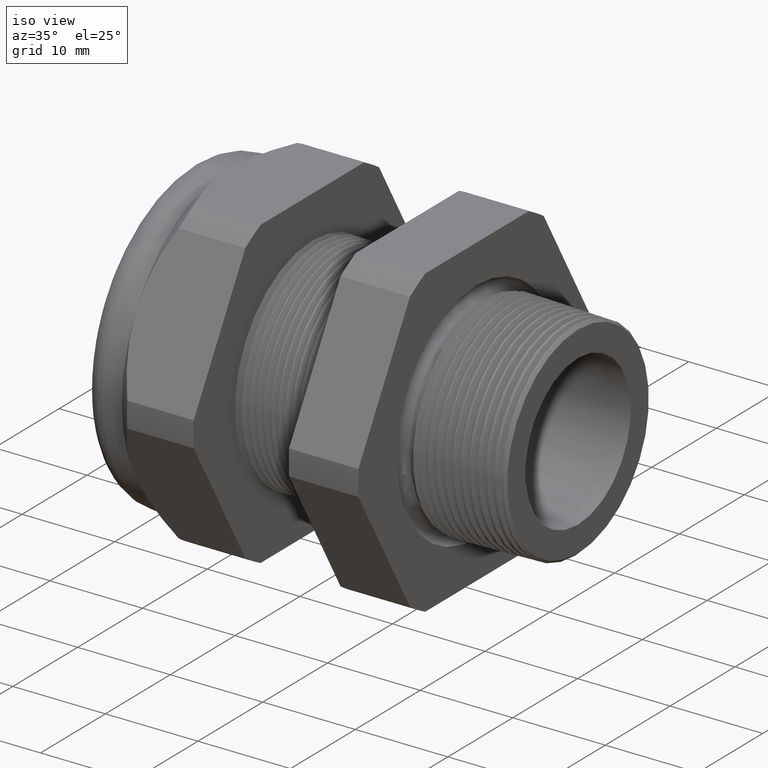
[diagram: clean part render]
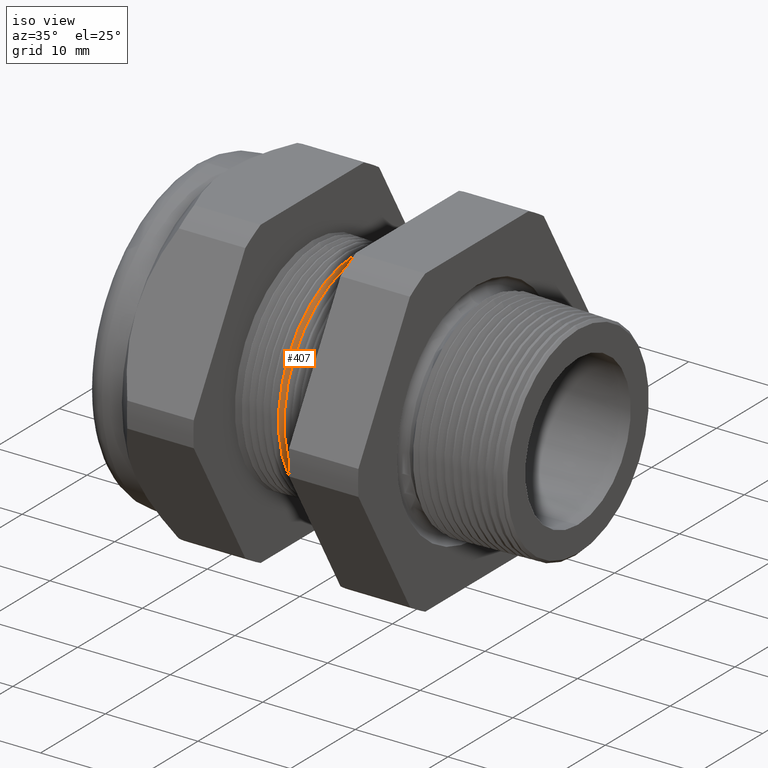
[diagram: same view with one face highlighted and labeled with its STEP entity id]
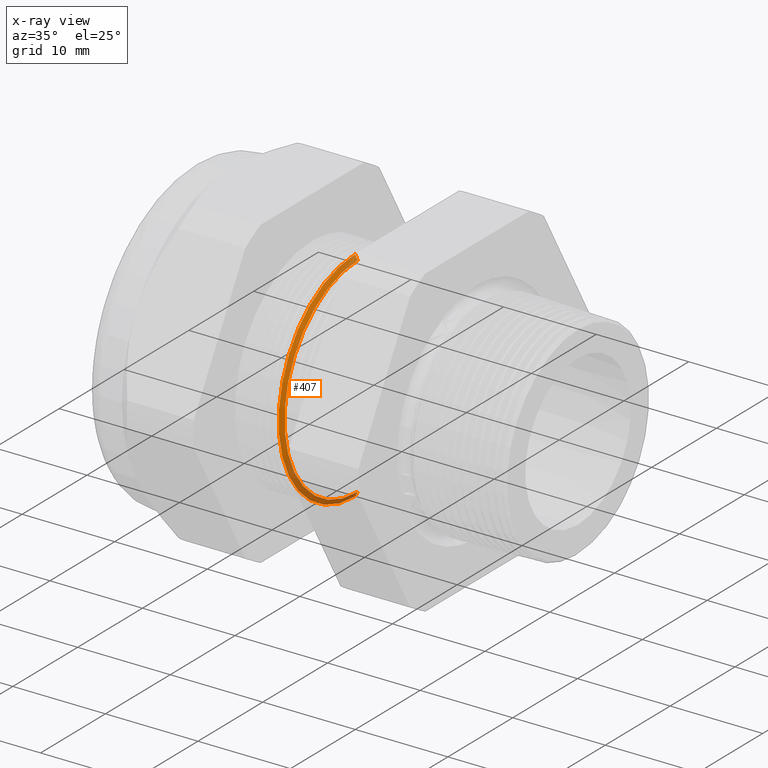
[diagram: x-ray of the same camera — body ghosted, the highlighted face saturated]
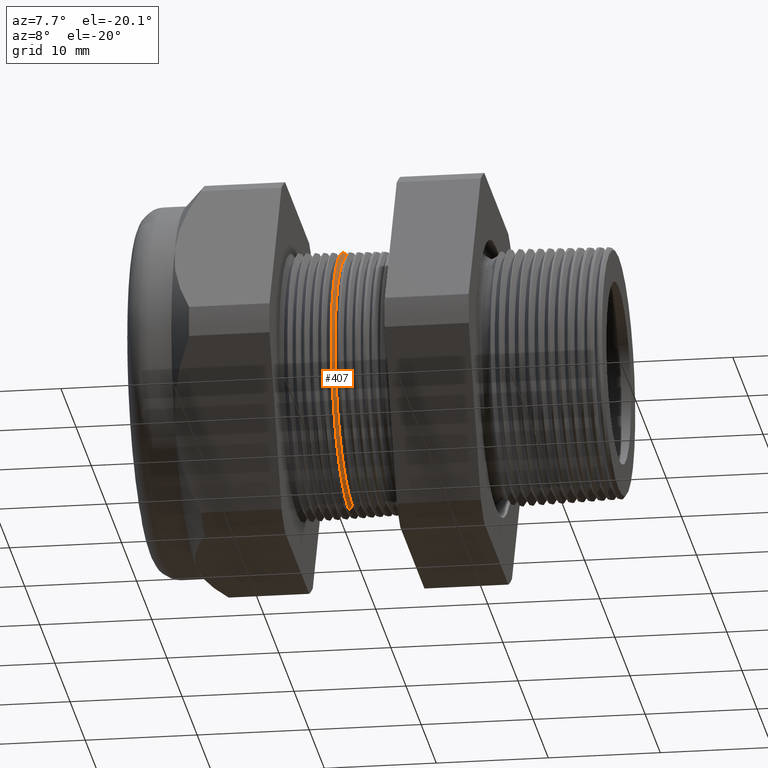
[diagram: same view with one face highlighted and labeled with its STEP entity id]
A machine part, iso view. The second image highlights one B-rep face of the part: STEP entity #407.
The next image is the same camera in x-ray: the body ghosted, the highlighted face saturated — about 29% of this face is hidden behind the body in this view.
A second angle (auxiliary view) of the same face is appended — the face is thin or edge-on in the first view.
In plain terms, the highlighted conical surface has half-angle 61.5 deg.
Its self-contained STEP definition (entity closure, byte-faithful):
#407 = ADVANCED_FACE ( 'NONE', ( #2023 ), #2022, .T. ) ;
#408 = EDGE_LOOP ( 'NONE', ( #409, #410, #463, #464 ) ) ;
#409 = ORIENTED_EDGE ( 'NONE', *, *, #748, .F. ) ;
#410 = ORIENTED_EDGE ( 'NONE', *, *, #411, .F. ) ;
#411 = EDGE_CURVE ( 'NONE', #763, #762, #2081, .T. ) ;
#463 = ORIENTED_EDGE ( 'NONE', *, *, #754, .T. ) ;
#464 = ORIENTED_EDGE ( 'NONE', *, *, #5089, .T. ) ;
#748 = EDGE_CURVE ( 'NONE', #762, #749, #2522, .T. ) ;
#749 = VERTEX_POINT ( 'NONE', #2514 ) ;
#752 = VERTEX_POINT ( 'NONE', #2508 ) ;
#754 = EDGE_CURVE ( 'NONE', #763, #752, #2507, .T. ) ;
#762 = VERTEX_POINT ( 'NONE', #2548 ) ;
#763 = VERTEX_POINT ( 'NONE', #2547 ) ;
#2018 = CARTESIAN_POINT ( 'NONE',  ( -0.8165405736958172300, 0.0000000000000000000, 0.0000000000000000000 ) ) ;
#2019 = DIRECTION ( 'NONE',  ( 0.0000000000000000000, 0.0000000000000000000, 1.000000000000000000 ) ) ;
#2020 = DIRECTION ( 'NONE',  ( -1.000000000000000000, 0.0000000000000000000, 0.0000000000000000000 ) ) ;
#2021 = AXIS2_PLACEMENT_3D ( 'NONE', #2028, #2020, #2019 ) ;
#2022 = CONICAL_SURFACE ( 'NONE', #2021, 0.4699999999999999700, 1.073377489976499400 ) ;
#2023 = FACE_OUTER_BOUND ( 'NONE', #408, .T. ) ;
#2028 = CARTESIAN_POINT ( 'NONE',  ( -0.8303149606299211600, 0.0000000000000000000, 0.0000000000000000000 ) ) ;
#2078 = DIRECTION ( 'NONE',  ( 0.0000000000000000000, 0.0000000000000000000, -1.000000000000000000 ) ) ;
#2079 = DIRECTION ( 'NONE',  ( 1.000000000000000000, 0.0000000000000000000, 0.0000000000000000000 ) ) ;
#2080 = AXIS2_PLACEMENT_3D ( 'NONE', #2018, #2079, #2078 ) ;
#2081 = CIRCLE ( 'NONE', #2080, 0.4446307351718083400 ) ;
#2504 = DIRECTION ( 'NONE',  ( -0.4771587602596201200, 0.0000000000000000000, 0.8788171126619589400 ) ) ;
#2505 = VECTOR ( 'NONE', #2504, 39.37007874015748100 ) ;
#2506 = CARTESIAN_POINT ( 'NONE',  ( -0.8303149606299211600, 0.0000000000000000000, 0.4699999999999999700 ) ) ;
#2507 = LINE ( 'NONE', #2506, #2505 ) ;
#2508 = CARTESIAN_POINT ( 'NONE',  ( -0.8277188464437456000, 0.0000000000000000000, 0.4652185524750837600 ) ) ;
#2514 = CARTESIAN_POINT ( 'NONE',  ( -0.8277188464437456000, 5.698263402483627700E-017, -0.4652185524750837600 ) ) ;
#2515 = DIRECTION ( 'NONE',  ( -0.4771587602596201200, 1.076240564057387000E-016, -0.8788171126619589400 ) ) ;
#2516 = VECTOR ( 'NONE', #2515, 39.37007874015748100 ) ;
#2517 = CARTESIAN_POINT ( 'NONE',  ( -0.8303149606299211600, 5.755839955992559700E-017, -0.4699999999999999700 ) ) ;
#2522 = LINE ( 'NONE', #2517, #2516 ) ;
#2547 = CARTESIAN_POINT ( 'NONE',  ( -0.8165405736958172300, 0.0000000000000000000, 0.4446307351718083400 ) ) ;
#2548 = CARTESIAN_POINT ( 'NONE',  ( -0.8165405736958172300, 5.571220089116329200E-017, -0.4446307351718083400 ) ) ;
#3816 = DIRECTION ( 'NONE',  ( 0.0000000000000000000, 0.0000000000000000000, 1.000000000000000000 ) ) ;
#3817 = DIRECTION ( 'NONE',  ( 1.000000000000000000, 0.0000000000000000000, 0.0000000000000000000 ) ) ;
#3818 = CARTESIAN_POINT ( 'NONE',  ( -0.8277188464437456000, 0.0000000000000000000, 0.0000000000000000000 ) ) ;
#3819 = AXIS2_PLACEMENT_3D ( 'NONE', #3818, #3817, #3816 ) ;
#3820 = CIRCLE ( 'NONE', #3819, 0.4652185524750837600 ) ;
#5089 = EDGE_CURVE ( 'NONE', #752, #749, #3820, .T. ) ;